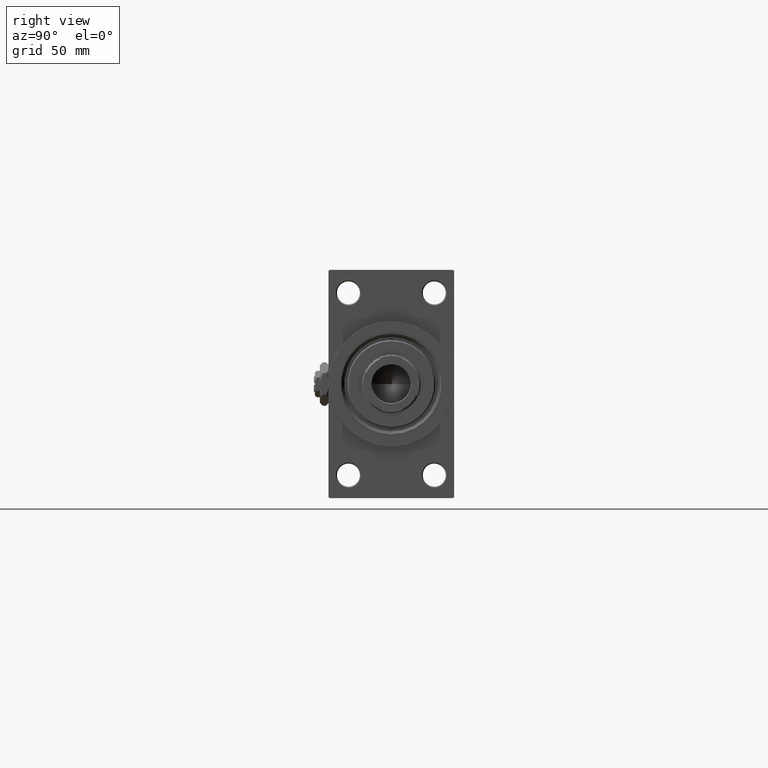
[diagram: clean part render]
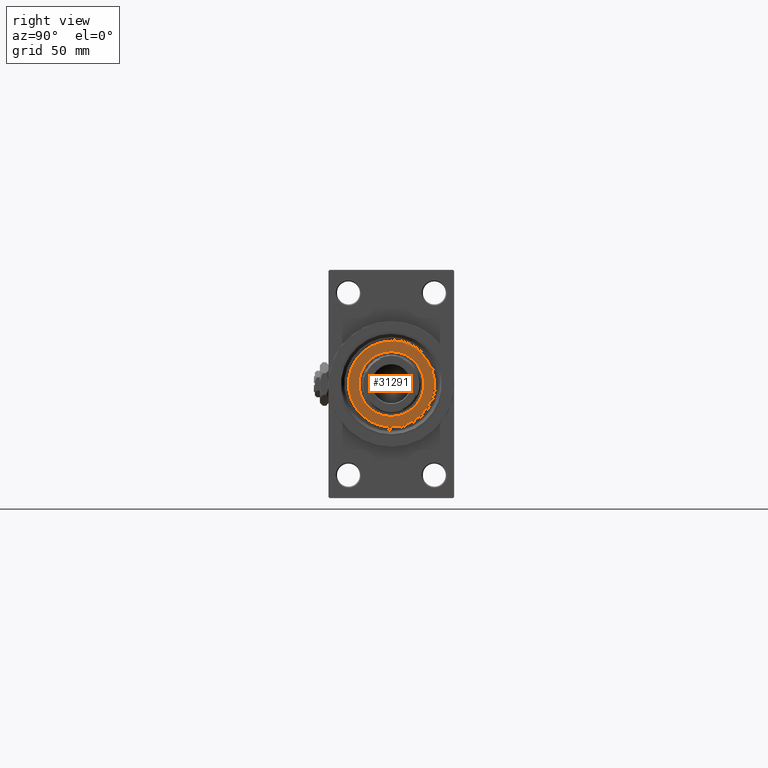
[diagram: same view with one face highlighted and labeled with its STEP entity id]
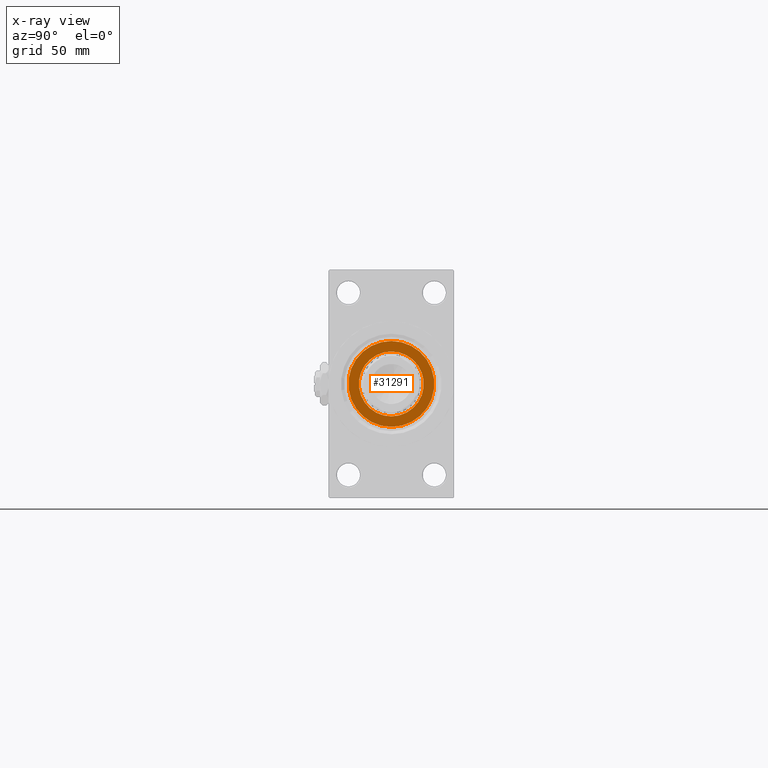
[diagram: x-ray of the same camera — body ghosted, the highlighted face saturated]
A machine part, right view. The second image highlights one B-rep face of the part: STEP entity #31291.
The next image is the same camera in x-ray: the body ghosted, the highlighted face saturated — about 0% of this face is hidden behind the body in this view.
In plain terms, the highlighted planar face has unit normal (1, -0, -0).
Its self-contained STEP definition (entity closure, byte-faithful):
#2960 = CARTESIAN_POINT ( 'NONE',  ( 0.000000000000000000, 0.000000000000000000, 55.26000000000000512 ) ) ;
#3125 = VERTEX_POINT ( 'NONE', #10835 ) ;
#3950 = CIRCLE ( 'NONE', #31957, 15.50000000000000000 ) ;
#4433 = CIRCLE ( 'NONE', #13201, 15.50000000000000000 ) ;
#6140 = CIRCLE ( 'NONE', #26995, 20.50000000000000355 ) ;
#7032 = DIRECTION ( 'NONE',  ( 1.000000000000000000, 0.000000000000000000, -0.000000000000000000 ) ) ;
#9758 = EDGE_LOOP ( 'NONE', ( #12689, #25761 ) ) ;
#9869 = CARTESIAN_POINT ( 'NONE',  ( -15.50000000000000000, 1.898202538678397557E-15, 55.26000000000000512 ) ) ;
#9921 = AXIS2_PLACEMENT_3D ( 'NONE', #18334, #30364, #7032 ) ;
#9964 = DIRECTION ( 'NONE',  ( 0.000000000000000000, 0.000000000000000000, 1.000000000000000000 ) ) ;
#10008 = DIRECTION ( 'NONE',  ( 0.000000000000000000, 0.000000000000000000, 1.000000000000000000 ) ) ;
#10069 = ORIENTED_EDGE ( 'NONE', *, *, #40242, .T. ) ;
#10086 = CARTESIAN_POINT ( 'NONE',  ( 20.50000000000000355, 2.541142108230758269E-15, 55.26000000000000512 ) ) ;
#10835 = CARTESIAN_POINT ( 'NONE',  ( -20.50000000000000355, 0.000000000000000000, 55.26000000000000512 ) ) ;
#11614 = CARTESIAN_POINT ( 'NONE',  ( 0.000000000000000000, 0.000000000000000000, 55.26000000000000512 ) ) ;
#12347 = DIRECTION ( 'NONE',  ( 1.000000000000000000, 0.000000000000000000, 0.000000000000000000 ) ) ;
#12689 = ORIENTED_EDGE ( 'NONE', *, *, #16247, .F. ) ;
#13201 = AXIS2_PLACEMENT_3D ( 'NONE', #2960, #9964, #44580 ) ;
#14325 = FACE_BOUND ( 'NONE', #9758, .T. ) ;
#16078 = VERTEX_POINT ( 'NONE', #33908 ) ;
#16247 = EDGE_CURVE ( 'NONE', #16078, #44361, #3950, .T. ) ;
#18334 = CARTESIAN_POINT ( 'NONE',  ( 0.000000000000000000, 0.000000000000000000, 55.26000000000000512 ) ) ;
#19131 = DIRECTION ( 'NONE',  ( 1.000000000000000000, 0.000000000000000000, 0.000000000000000000 ) ) ;
#19620 = DIRECTION ( 'NONE',  ( 0.000000000000000000, 0.000000000000000000, 1.000000000000000000 ) ) ;
#20851 = CIRCLE ( 'NONE', #32047, 20.50000000000000355 ) ;
#21054 = DIRECTION ( 'NONE',  ( 1.000000000000000000, 0.000000000000000000, 0.000000000000000000 ) ) ;
#23127 = EDGE_CURVE ( 'NONE', #48828, #3125, #20851, .T. ) ;
#25761 = ORIENTED_EDGE ( 'NONE', *, *, #33830, .F. ) ;
#26925 = DIRECTION ( 'NONE',  ( 0.000000000000000000, 0.000000000000000000, 1.000000000000000000 ) ) ;
#26995 = AXIS2_PLACEMENT_3D ( 'NONE', #42182, #19620, #19131 ) ;
#30364 = DIRECTION ( 'NONE',  ( 0.000000000000000000, 0.000000000000000000, 1.000000000000000000 ) ) ;
#31291 = ADVANCED_FACE ( 'NONE', ( #14325, #44904 ), #37119, .T. ) ;
#31957 = AXIS2_PLACEMENT_3D ( 'NONE', #11614, #26925, #12347 ) ;
#32047 = AXIS2_PLACEMENT_3D ( 'NONE', #32584, #10008, #21054 ) ;
#32584 = CARTESIAN_POINT ( 'NONE',  ( 0.000000000000000000, 0.000000000000000000, 55.26000000000000512 ) ) ;
#33830 = EDGE_CURVE ( 'NONE', #44361, #16078, #4433, .T. ) ;
#33908 = CARTESIAN_POINT ( 'NONE',  ( 15.50000000000000000, 0.000000000000000000, 55.26000000000000512 ) ) ;
#37119 = PLANE ( 'NONE',  #9921 ) ;
#40242 = EDGE_CURVE ( 'NONE', #3125, #48828, #6140, .T. ) ;
#40840 = EDGE_LOOP ( 'NONE', ( #10069, #45202 ) ) ;
#42182 = CARTESIAN_POINT ( 'NONE',  ( 0.000000000000000000, 0.000000000000000000, 55.26000000000000512 ) ) ;
#44361 = VERTEX_POINT ( 'NONE', #9869 ) ;
#44580 = DIRECTION ( 'NONE',  ( 1.000000000000000000, 0.000000000000000000, 0.000000000000000000 ) ) ;
#44904 = FACE_OUTER_BOUND ( 'NONE', #40840, .T. ) ;
#45202 = ORIENTED_EDGE ( 'NONE', *, *, #23127, .T. ) ;
#48828 = VERTEX_POINT ( 'NONE', #10086 ) ;